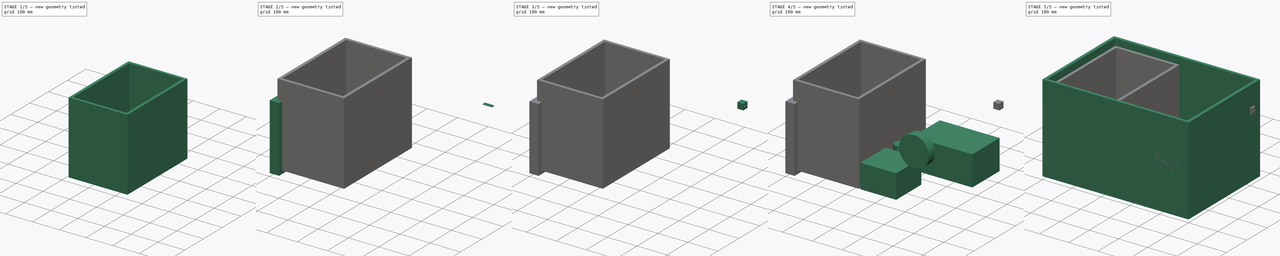
[diagram: build sequence overview — one tinted view per stage of 5, left to right]
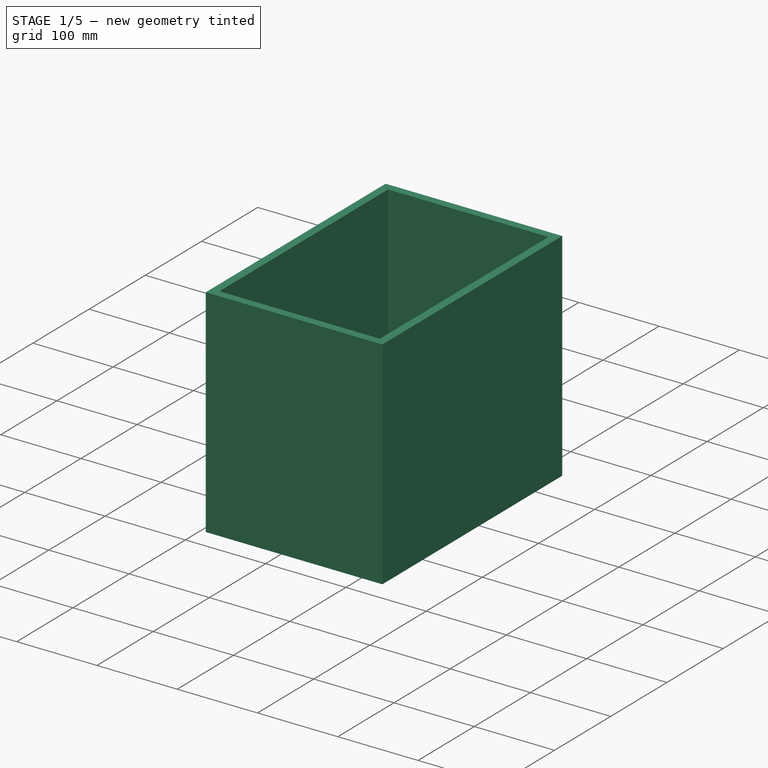
[diagram: stage 1 of 5 — iso view after this stage's code; geometry added in this stage tinted green]
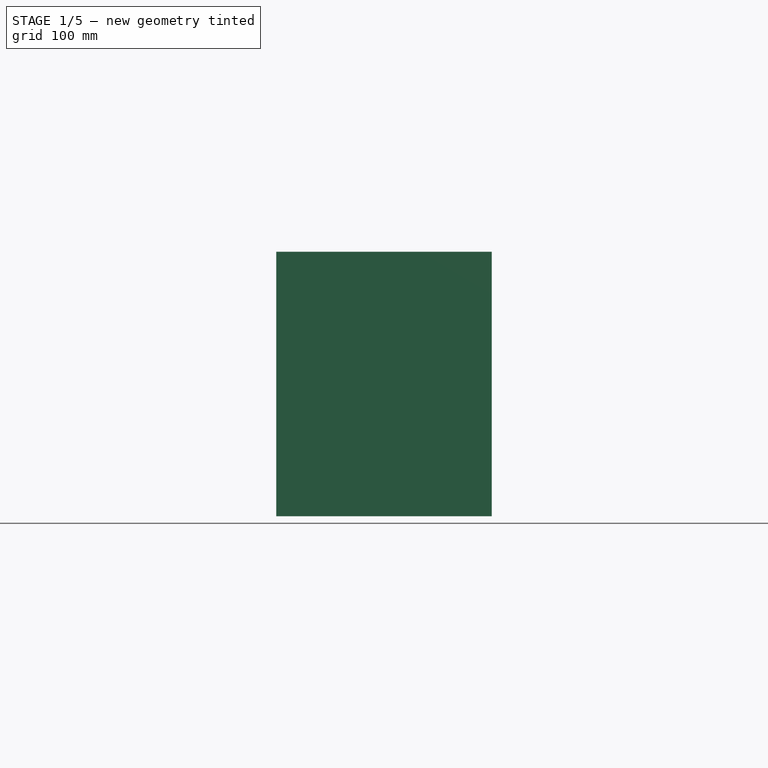
[diagram: stage 1 of 5 — front view after this stage's code; geometry added in this stage tinted green]
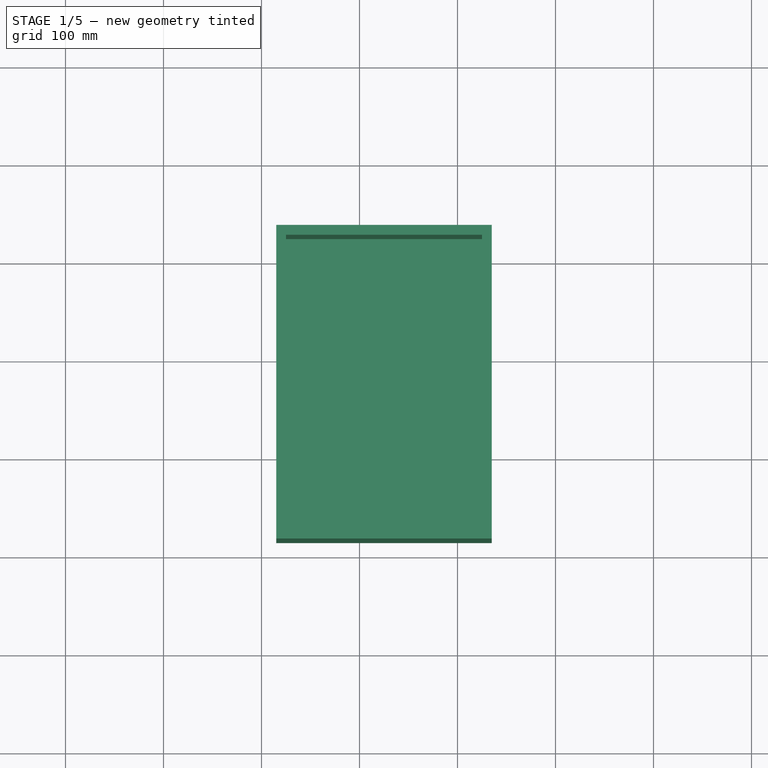
[diagram: stage 1 of 5 — top view after this stage's code; geometry added in this stage tinted green]
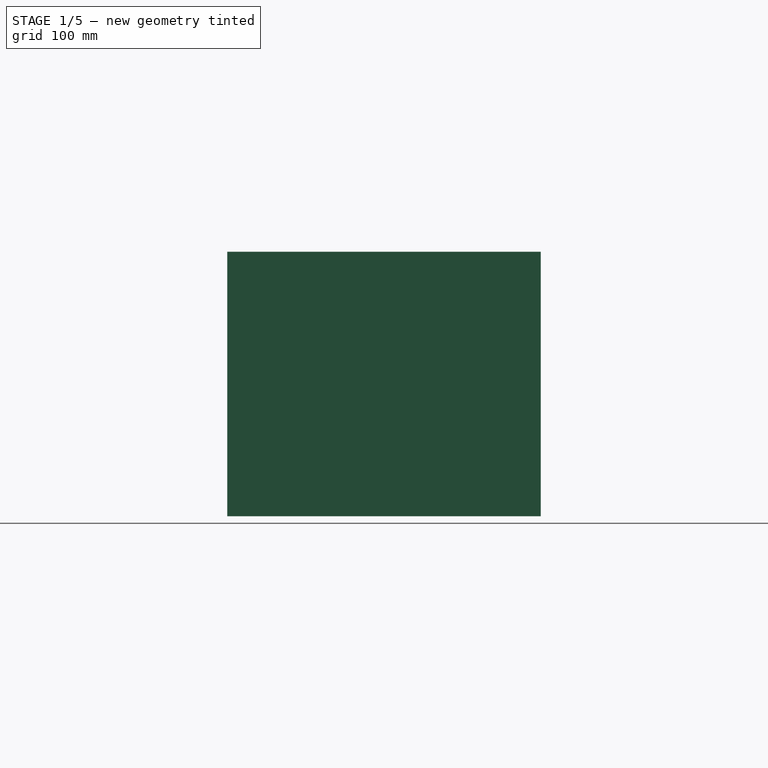
[diagram: stage 1 of 5 — right view after this stage's code; geometry added in this stage tinted green]
FCSTD DOCUMENT  (FreeCAD 0.16R6706 (Git))
Label: HOOU_FreeCAD_Solar_Box_v_01
License: All rights reserved
LicenseURL: http://en.wikipedia.org/wiki/All_rights_reserved
objects: PartDesign::Body×10, Part::Box×7, Part::Cut×4, Sketcher::SketchObject×4, Part::Cylinder×4, PartDesign::Pad×2, App::DocumentObjectGroup×1
note: 33 computed .brp shape members not serialized (recipe doc carries the construction recipe); baked Part::Feature solids carry a one-line shape summary decoded from their .brp

FEATURE [Sketcher::SketchObject] Sketch
FEATURE [Part::Box] Box002  label="Akku_box"
  Height = 290
  Length = 200
  Placement = pos=(25,25,20) rot=(0,0,1;0rad)
  Width = 300
FEATURE [Sketcher::SketchObject] Sketch003
  Placement = pos=(0,0,222.5) rot=(0,0,1;0rad)
  sketch-geometry (2):
    g0: Circle CenterX=15.5 CenterY=101.3 CenterZ=0 NormalX=0 NormalY=0 NormalZ=1 Radius=4
    g1: Circle CenterX=15.5 CenterY=33.8 CenterZ=0 NormalX=0 NormalY=0 NormalZ=1 Radius=4
  constraints (6):
    c: Radius(g0) = 4
    c: DistanceY(g-1,g0) = 101.3
    c: DistanceX(g-1,g0) = 15.5
    c: Radius(g1) = 4
    c: DistanceX(g-1,g1) = 15.5
    c: DistanceY(g-1,g1) = 33.8
FEATURE [PartDesign::Body] Body001  label="AKKU 002"
  Placement = pos=(70,30,25) rot=(-0.992888,-0.047638,-0.109101;0.002805rad)
FEATURE [PartDesign::Body] Body002  label="AKKU 003"
  Placement = pos=(110,30,25) rot=(-0.992888,-0.047638,-0.109101;0.002805rad)
FEATURE [PartDesign::Body] Body003  label="AKKU 004"
  Placement = pos=(150,30,25) rot=(-0.992888,-0.047638,-0.109101;0.002805rad)
FEATURE [PartDesign::Body] Body004  label="AKKU 005"
  Placement = pos=(190,30,25) rot=(-0.992888,-0.047638,-0.109101;0.002805rad)
FEATURE [PartDesign::Body] Body005  label="AKKU 006"
  Placement = pos=(190,180,25) rot=(-0.992888,-0.047638,-0.109101;0.002805rad)
FEATURE [PartDesign::Body] Body006  label="AKKU 007"
  Placement = pos=(150,180,25) rot=(-0.992888,-0.047638,-0.109101;0.002805rad)
FEATURE [PartDesign::Body] Body007  label="AKKU 008"
  Placement = pos=(110,180,25) rot=(-0.992888,-0.047638,-0.109101;0.002805rad)
FEATURE [PartDesign::Body] Body008  label="AKKU 009"
  Placement = pos=(70,180,25) rot=(-0.992888,-0.047638,-0.109101;0.002805rad)
FEATURE [PartDesign::Body] Body009  label="AKKU 010"
  Placement = pos=(30,180,25) rot=(-0.992888,-0.047638,-0.109101;0.002805rad)
FEATURE [App::DocumentObjectGroup] Group  label="Akku"
  Group = -> [Body,XY_Plane,XZ_Plane,YZ_Plane,Sketch001,Pad,Sketch002,Pad001,Sketch003,Body001,Body002,Body003,Body004,Body005,Body006,Body007,Body008,Body009]
FEATURE [Part::Box] Box006  label="Akku_box001"
  Height = 270
  Length = 220
  Placement = pos=(15,15,10) rot=(0,0,1;0rad)
  Width = 320
FEATURE [Part::Cut] Cut003  label="Akku_pack"
  Base = -> Box006
  Tool = -> Box002
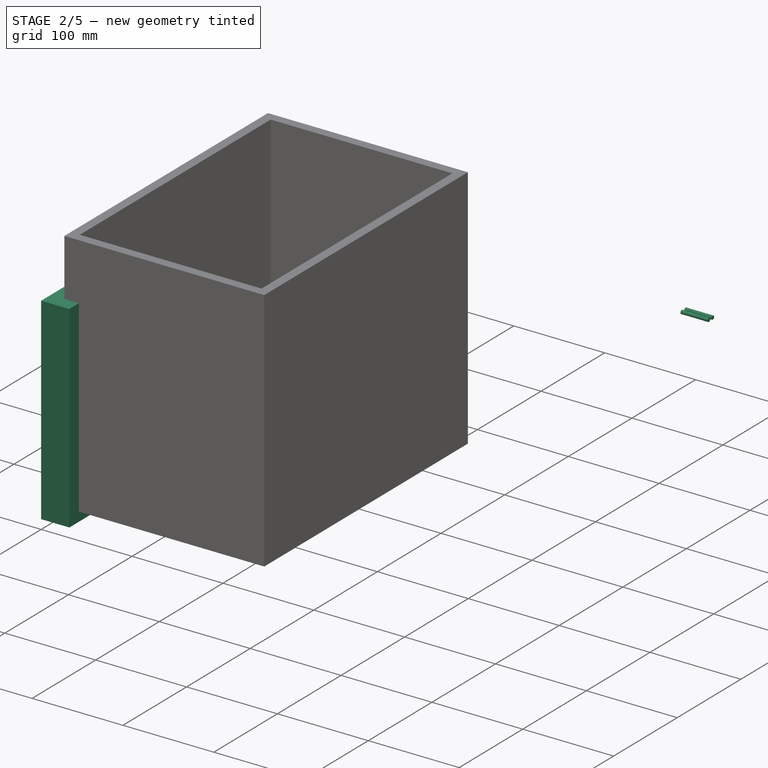
[diagram: stage 2 of 5 — iso view after this stage's code; geometry added in this stage tinted green]
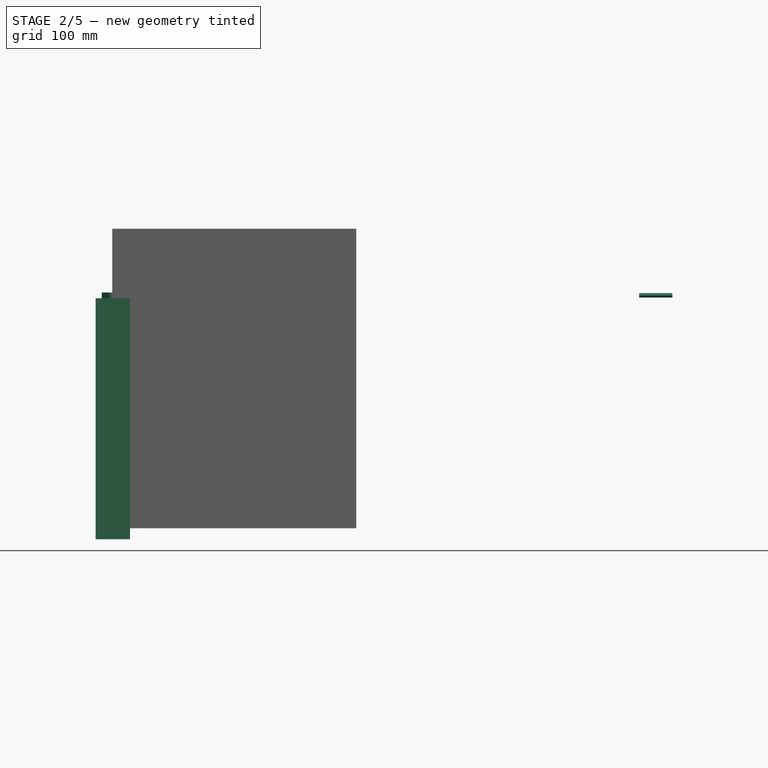
[diagram: stage 2 of 5 — front view after this stage's code; geometry added in this stage tinted green]
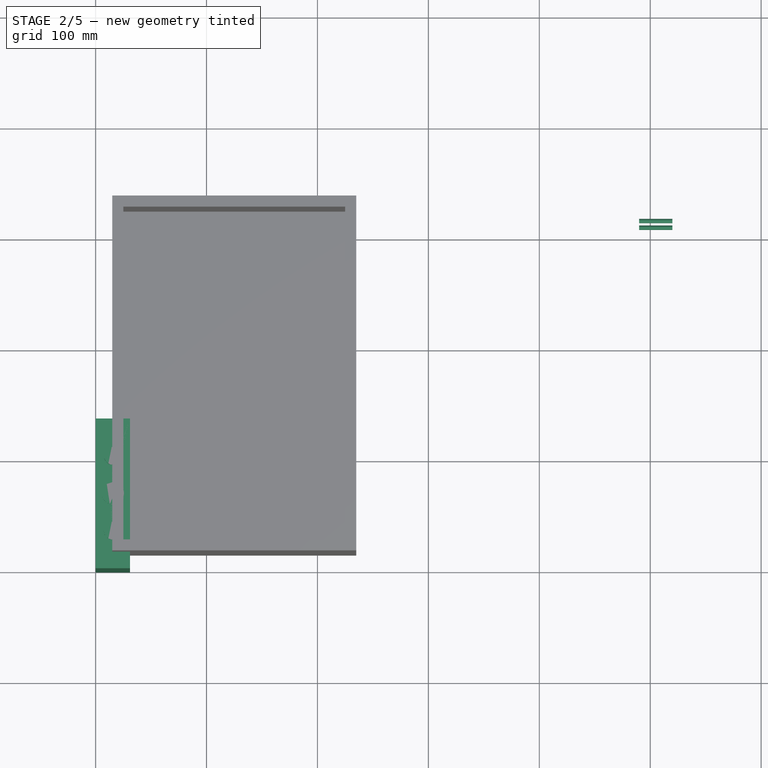
[diagram: stage 2 of 5 — top view after this stage's code; geometry added in this stage tinted green]
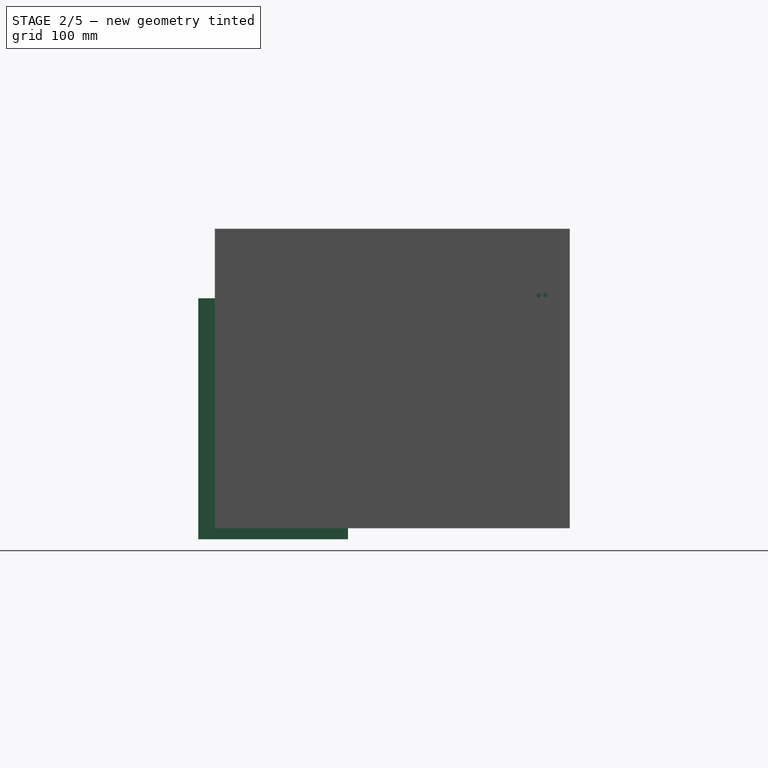
[diagram: stage 2 of 5 — right view after this stage's code; geometry added in this stage tinted green]
FEATURE [Part::Cylinder] Cylinder002  label="Cylinder"
  Angle = 360
  Height = 30
  Placement = pos=(490,307,220) rot=(0,1,0;1.5708rad)
  Radius = 2
FEATURE [Part::Cylinder] Cylinder003  label="Cylinder001"
  Angle = 360
  Height = 30
  Placement = pos=(490,313,220) rot=(0,1,0;1.5708rad)
  Radius = 2
FEATURE [PartDesign::Body] Body  label="AKKU 001"
  Placement = pos=(30,30,25) rot=(-0.992888,-0.047638,-0.109101;0.002805rad)
FEATURE [Sketcher::SketchObject] Sketch001
  sketch-geometry (4):
    g0: LineSegment StartX=0 StartY=135.1 StartZ=0 EndX=31 EndY=135.1 EndZ=0
    g1: LineSegment StartX=31 StartY=135.1 StartZ=0 EndX=31 EndY=0 EndZ=0
    g2: LineSegment StartX=31 StartY=0 StartZ=0 EndX=0 EndY=0 EndZ=0
    g3: LineSegment StartX=0 StartY=0 StartZ=0 EndX=0 EndY=135.1 EndZ=0
  constraints (11):
    c: Coincident(g0,g1)
    c: Coincident(g1,g2)
    c: Coincident(g2,g3)
    c: Coincident(g3,g0)
    c: Horizontal(g0)
    c: Horizontal(g2)
    c: Vertical(g1)
    c: Vertical(g3)
    c: Coincident(g2,g-1)
    c: DistanceY(g3,g3) = 135.1
    c: DistanceX(g2,g2) = 31
FEATURE [PartDesign::Pad] Pad
  Length = 217.3
  Length2 = 100
  Type = 0
FEATURE [Sketcher::SketchObject] Sketch002
  Placement = pos=(0,0,217.3) rot=(0,0,1;0rad)
  sketch-geometry (3):
    g0: Circle CenterX=15.5 CenterY=33.8 CenterZ=0 NormalX=0 NormalY=0 NormalZ=1 Radius=8
    g1: Circle CenterX=15.5 CenterY=67.55 CenterZ=0 NormalX=0 NormalY=0 NormalZ=1 Radius=10
    g2: Circle CenterX=15.5 CenterY=101.3 CenterZ=0 NormalX=0 NormalY=0 NormalZ=1 Radius=8
  constraints (9):
    c: DistanceY(g-1,g1) = 67.55
    c: DistanceX(g-1,g1) = 15.5
    c: DistanceX(g-1,g0) = 15.5
    c: DistanceX(g-1,g2) = 15.5
    c: DistanceY(g-1,g0) = 33.8
    c: DistanceY(g-1,g2) = 101.3
    c: Radius(g2) = 8
    c: Radius(g0) = 8
    c: Radius(g1) = 10
FEATURE [PartDesign::Pad] Pad001
  Length = 5.2
  Length2 = 100
  Type = 0
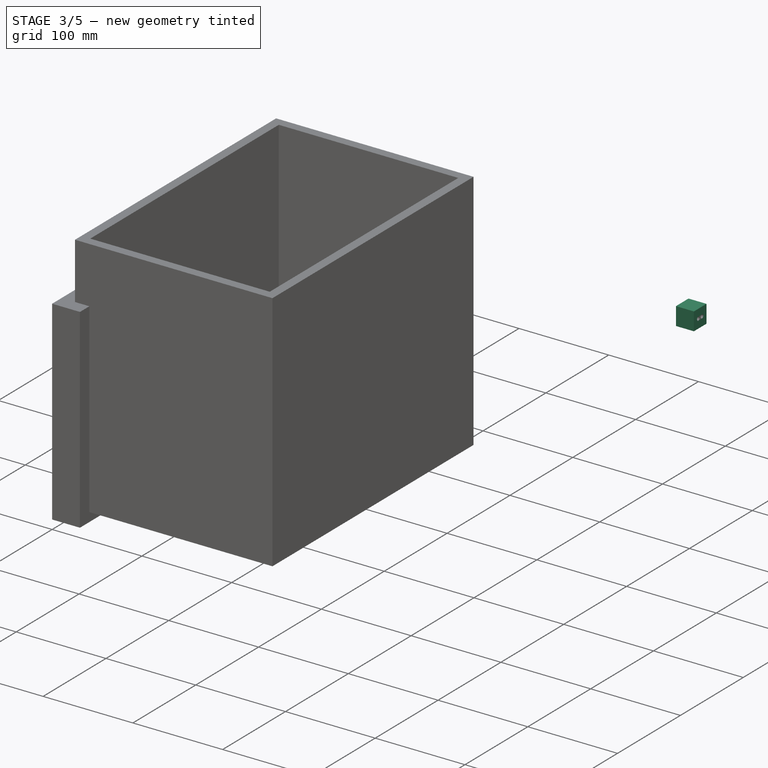
[diagram: stage 3 of 5 — iso view after this stage's code; geometry added in this stage tinted green]
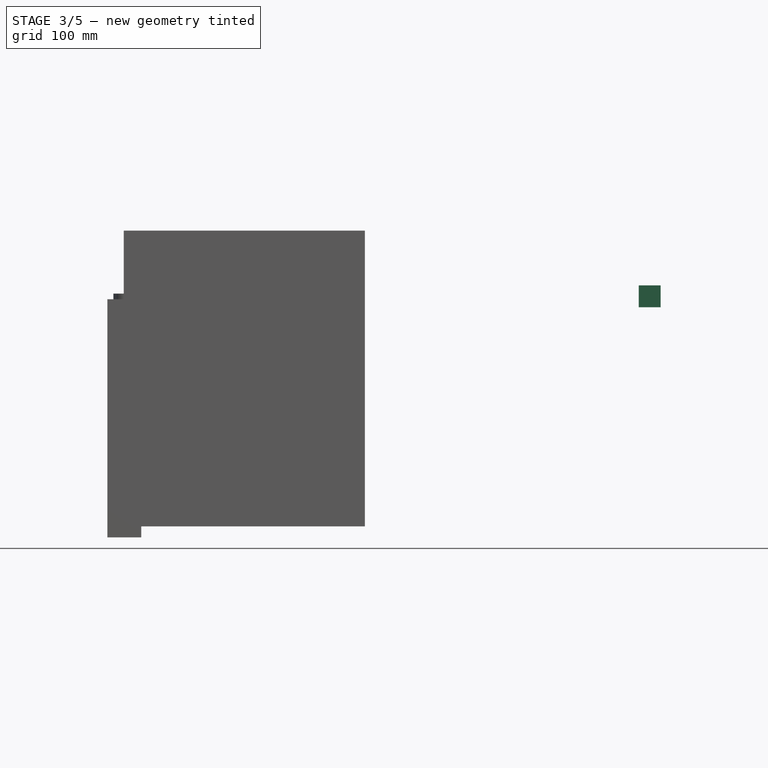
[diagram: stage 3 of 5 — front view after this stage's code; geometry added in this stage tinted green]
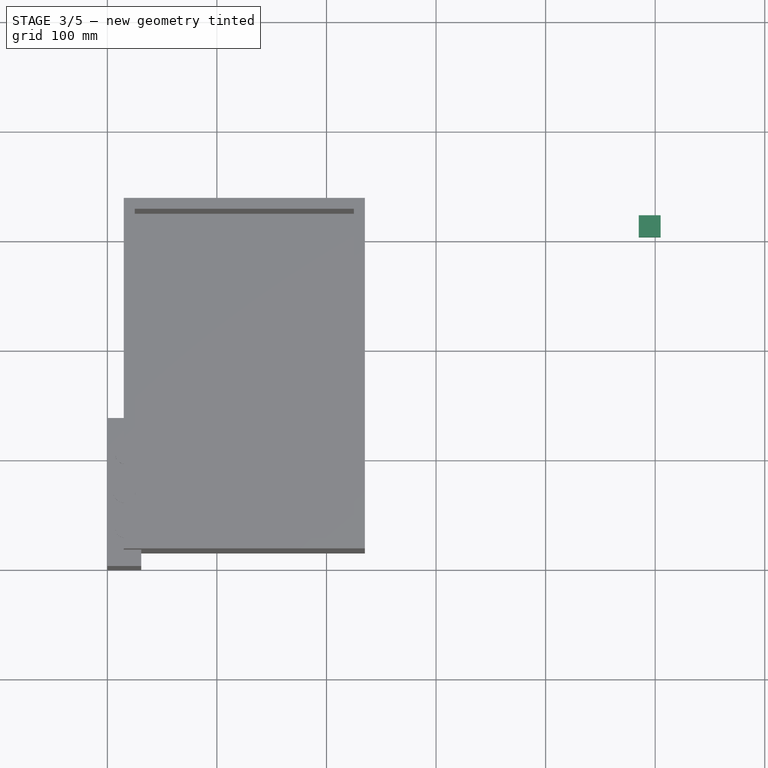
[diagram: stage 3 of 5 — top view after this stage's code; geometry added in this stage tinted green]
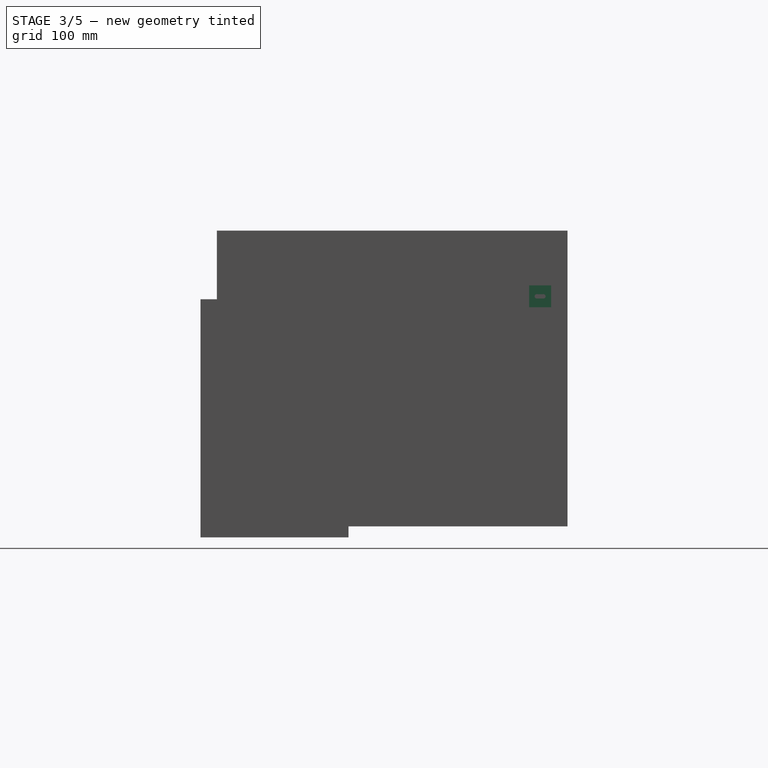
[diagram: stage 3 of 5 — right view after this stage's code; geometry added in this stage tinted green]
FEATURE [Part::Box] Box005  label="Plug"
  Height = 20
  Length = 20
  Placement = pos=(485,300,210) rot=(0,0,1;0rad)
  Width = 20
FEATURE [Part::Cut] Cut001
  Base = -> Box005
  Tool = -> Cylinder002
FEATURE [Part::Cut] Cut002  label="Plug001"
  Base = -> Cut001
  Tool = -> Cylinder003
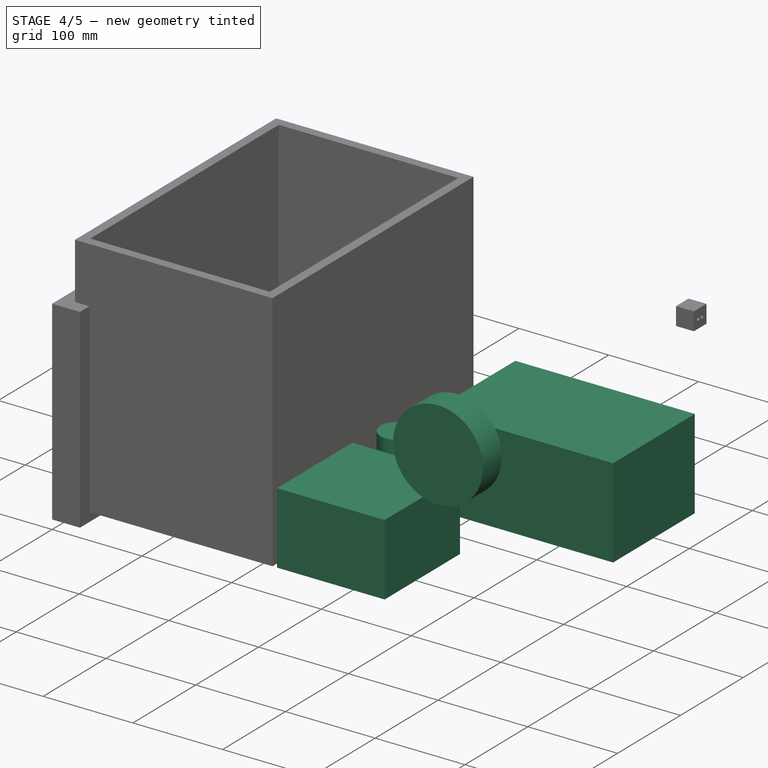
[diagram: stage 4 of 5 — iso view after this stage's code; geometry added in this stage tinted green]
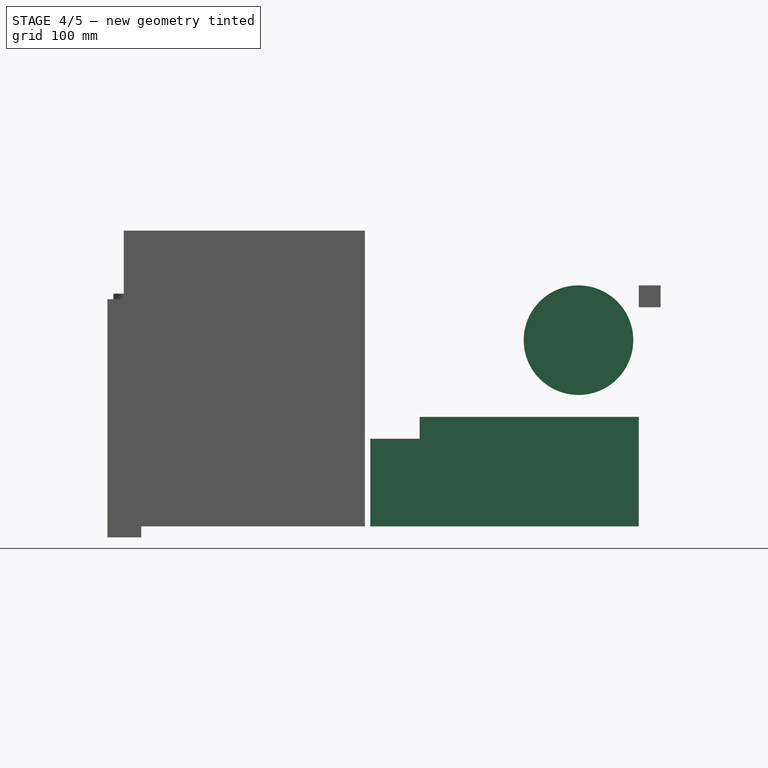
[diagram: stage 4 of 5 — front view after this stage's code; geometry added in this stage tinted green]
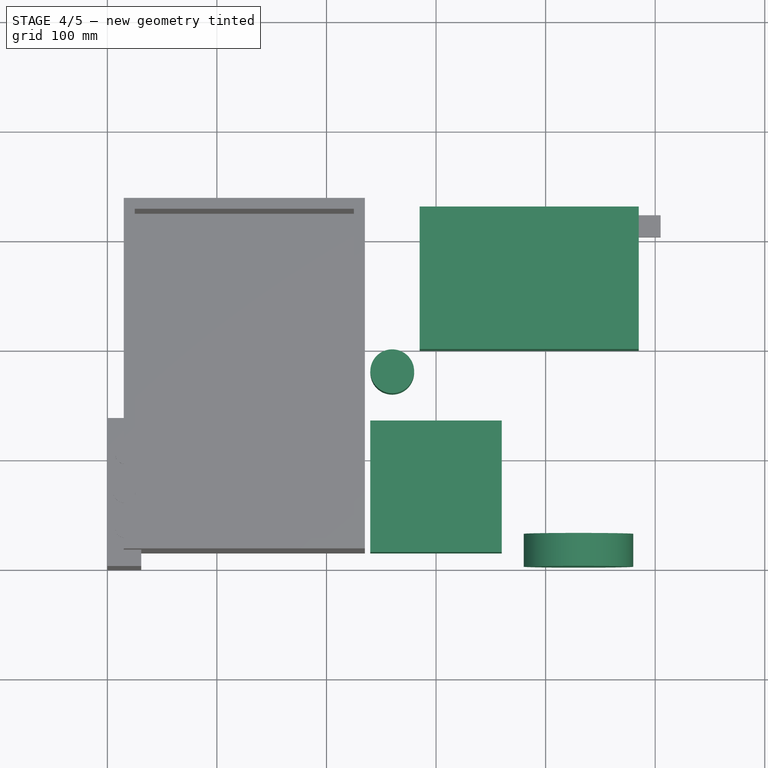
[diagram: stage 4 of 5 — top view after this stage's code; geometry added in this stage tinted green]
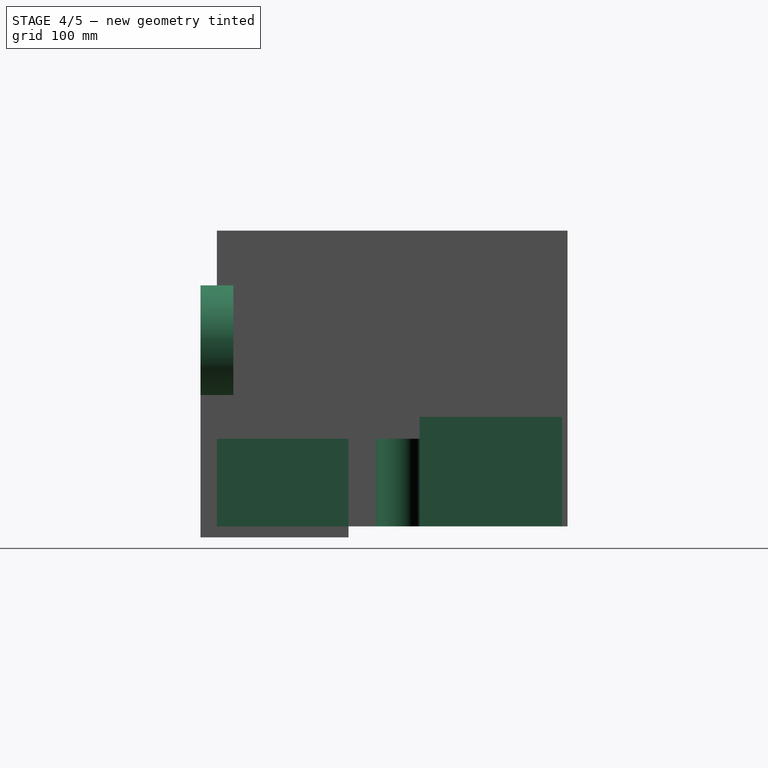
[diagram: stage 4 of 5 — right view after this stage's code; geometry added in this stage tinted green]
FEATURE [Part::Box] Box003  label="MPPT"
  Height = 80
  Length = 120
  Placement = pos=(240,15,10) rot=(0,0,1;0rad)
  Width = 120
FEATURE [Part::Cylinder] Cylinder  label="Capacitor"
  Angle = 360
  Height = 80
  Placement = pos=(260,180,10) rot=(0,0,1;0rad)
  Radius = 20
FEATURE [Part::Box] Box004  label="Electric Components"
  Height = 100
  Length = 200
  Placement = pos=(285,200,10) rot=(0,0,1;0rad)
  Width = 130
FEATURE [Part::Cylinder] Cylinder001  label="Fan"
  Angle = 360
  Height = 30
  Placement = pos=(430,30,180) rot=(1,0,0;1.5708rad)
  Radius = 50
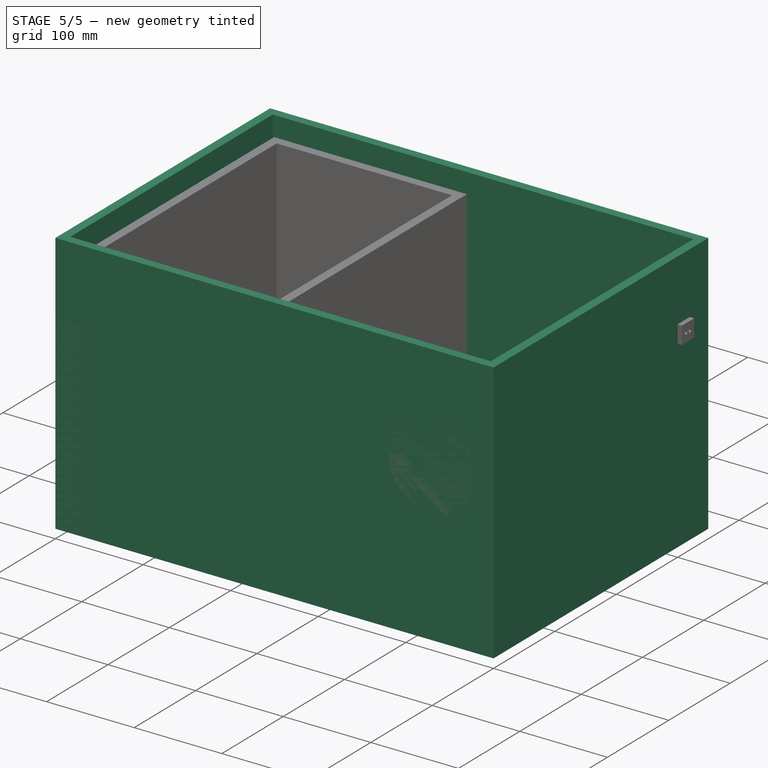
[diagram: stage 5 of 5 — iso view after this stage's code; geometry added in this stage tinted green]
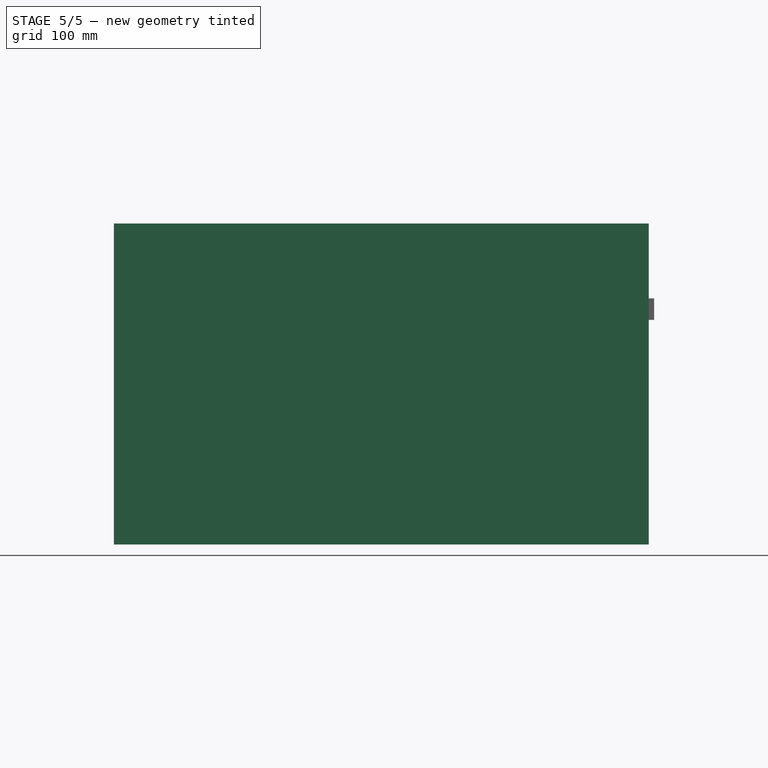
[diagram: stage 5 of 5 — front view after this stage's code; geometry added in this stage tinted green]
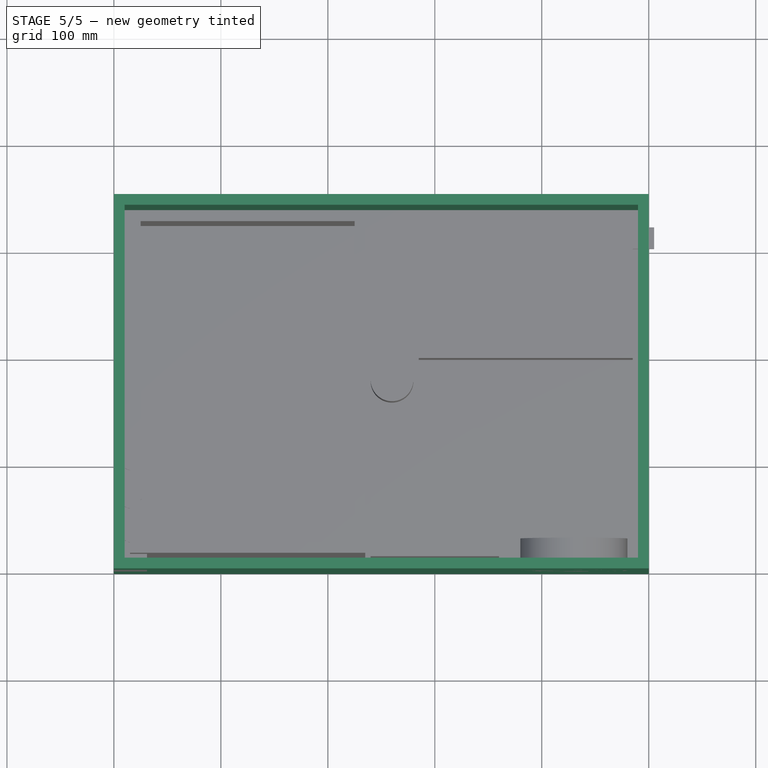
[diagram: stage 5 of 5 — top view after this stage's code; geometry added in this stage tinted green]
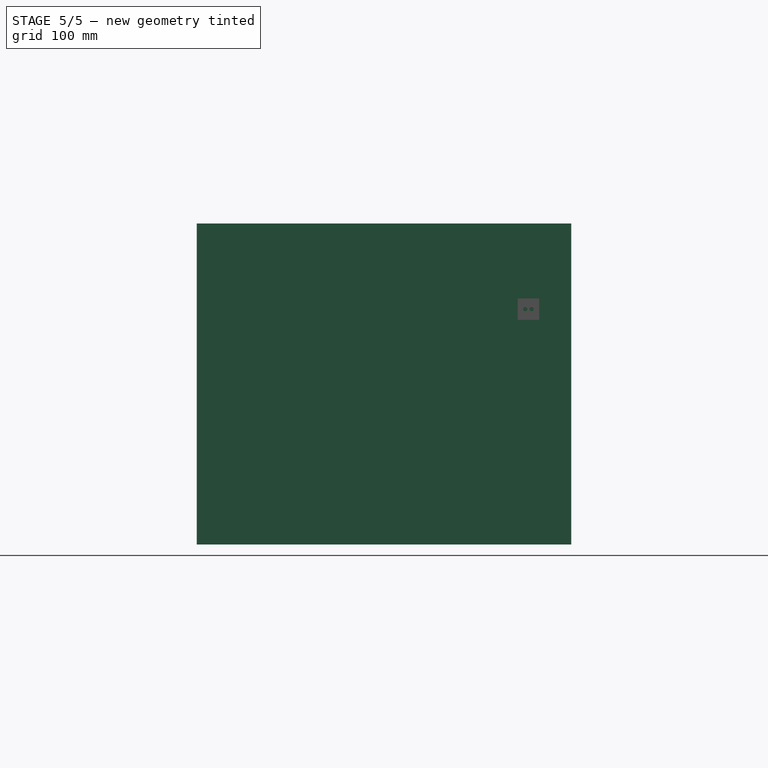
[diagram: stage 5 of 5 — right view after this stage's code; geometry added in this stage tinted green]
FEATURE [Part::Box] Box  label="Cube"
  Height = 300
  Length = 500
  Width = 350
FEATURE [Part::Box] Box001  label="Cube001"
  Height = 320
  Length = 480
  Placement = pos=(10,10,10) rot=(0,0,1;0rad)
  Width = 330
FEATURE [Part::Cut] Cut  label="Solar Box"
  Base = -> Box
  Tool = -> Box001
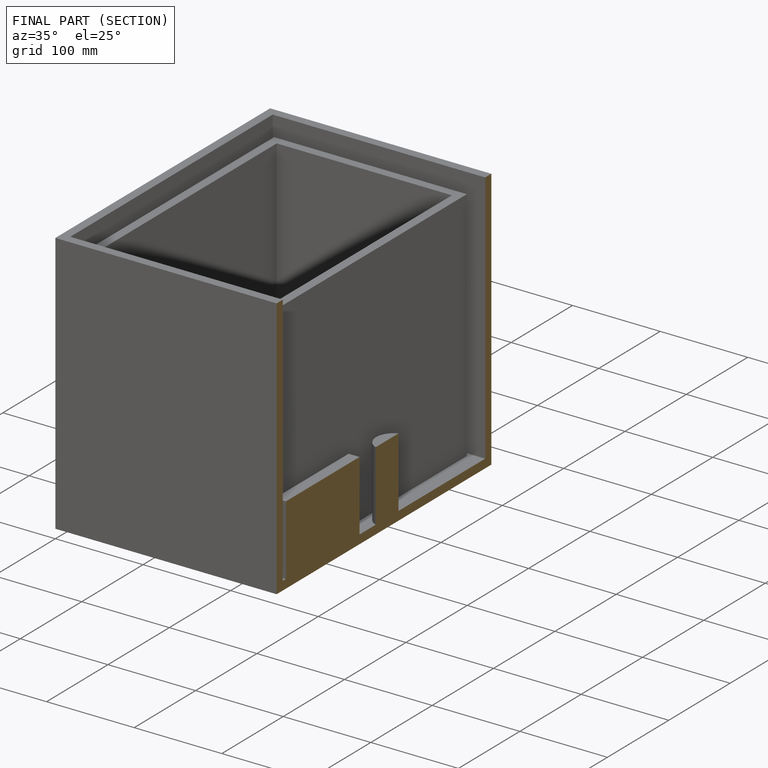
[diagram: finished part — half-section view (interior)]
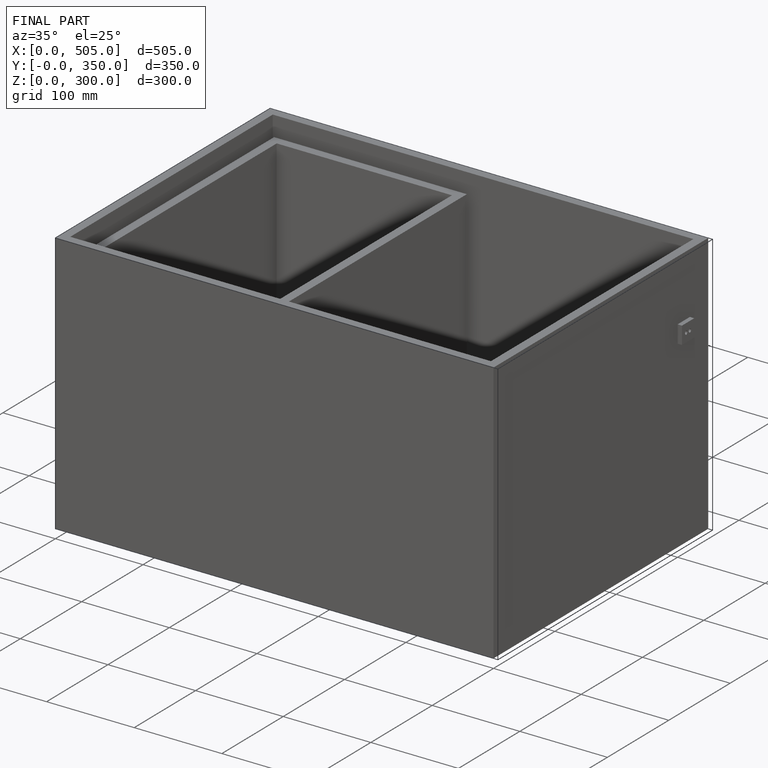
[diagram: finished part — iso view with bounding-box wireframe]
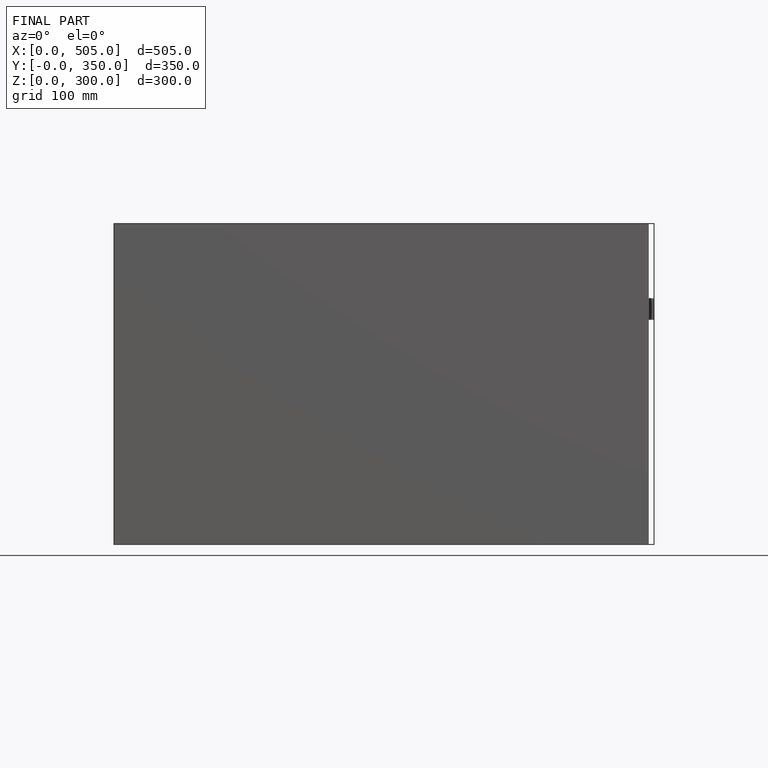
[diagram: finished part — front view with bounding-box wireframe]
